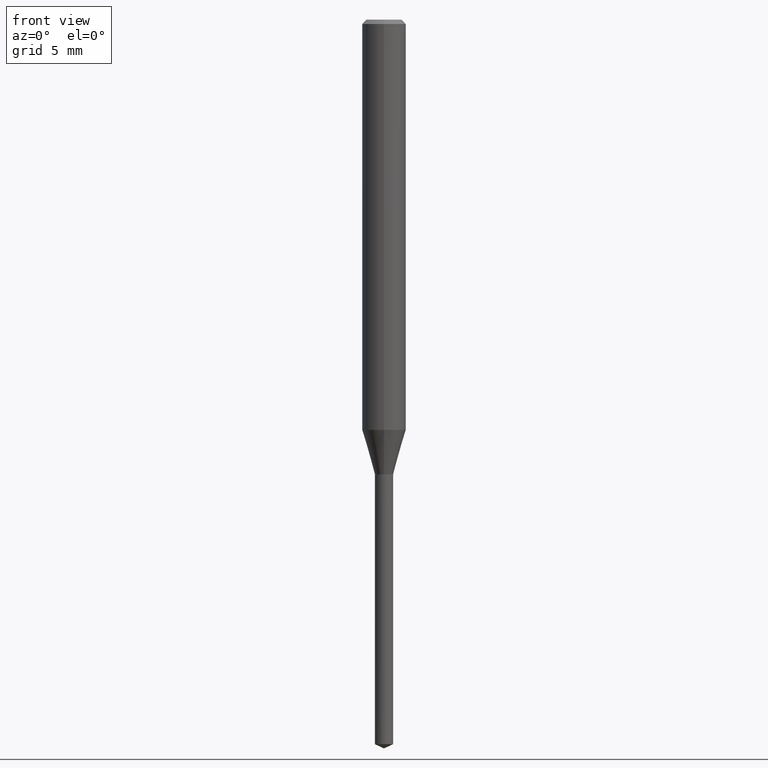
[diagram: clean part render]
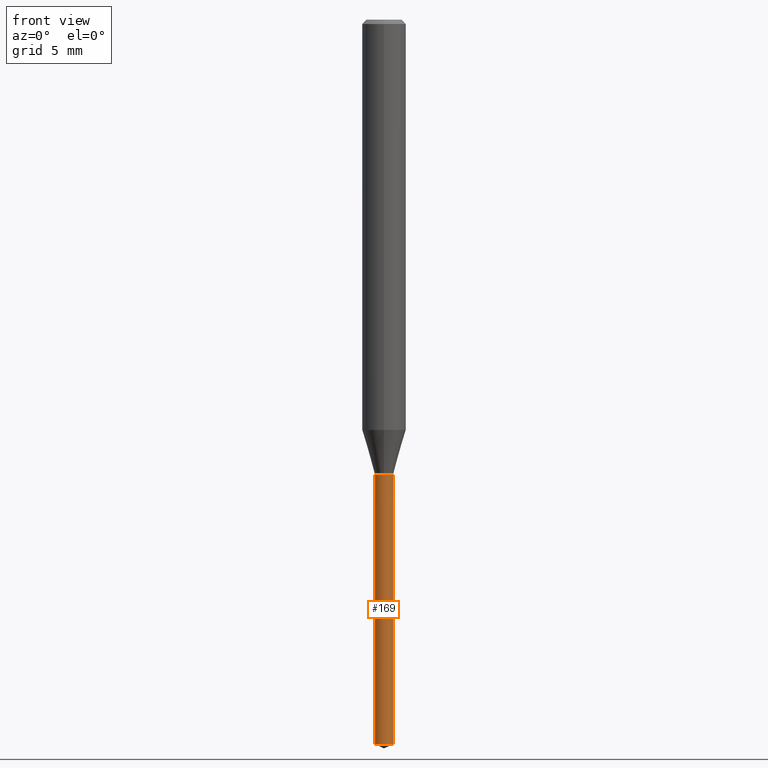
[diagram: same view with one face highlighted and labeled with its STEP entity id]
A machine part, front view. The second image highlights one B-rep face of the part: STEP entity #169.
In plain terms, the highlighted conical surface has half-angle 0.003 deg.
Its self-contained STEP definition (entity closure, byte-faithful):
#93=EDGE_CURVE('',#191,#111,#229,.T.);
#103=VERTEX_POINT('',#240);
#107=EDGE_CURVE('',#149,#103,#245,.T.);
#111=VERTEX_POINT('',#250);
#129=EDGE_CURVE('',#103,#111,#269,.T.);
#149=VERTEX_POINT('',#291);
#155=EDGE_CURVE('',#191,#149,#298,.T.);
#169=ADVANCED_FACE('',(#315),#316,.T.);
#191=VERTEX_POINT('',#340);
#229=CIRCLE('',#372,0.625);
#240=CARTESIAN_POINT('',(-0.626,0.0,-31.2));
#245=CIRCLE('',#393,0.626);
#250=CARTESIAN_POINT('',(-0.625,0.0,-49.70855771));
#269=LINE('',#422,#423);
#291=CARTESIAN_POINT('',(0.626,7.66603577492808E-017,-31.2));
#298=LINE('',#459,#460);
#315=FACE_OUTER_BOUND('',#480,.T.);
#316=CONICAL_SURFACE('',#481,0.6255,5.40290612966922E-005);
#340=CARTESIAN_POINT('',(0.625,7.65378971138986E-017,-49.70855771));
#372=AXIS2_PLACEMENT_3D('',#543,#544,#545);
#393=AXIS2_PLACEMENT_3D('',#564,#565,#566);
#422=CARTESIAN_POINT('',(-0.6255,-7.65991274315897E-017,-40.454278855));
#423=VECTOR('',#592,1.0);
#459=CARTESIAN_POINT('',(0.6255,7.65991274315897E-017,-40.454278855));
#460=VECTOR('',#627,1.0);
#480=EDGE_LOOP('',(#660,#661,#662,#663));
#481=AXIS2_PLACEMENT_3D('',#664,#665,#666);
#543=CARTESIAN_POINT('',(0.0,0.0,-49.70855771));
#544=DIRECTION('',(0.0,0.0,-1.0));
#545=DIRECTION('',(-1.0,0.0,0.0));
#564=CARTESIAN_POINT('',(0.0,0.0,-31.2));
#565=DIRECTION('',(0.0,0.0,-1.0));
#566=DIRECTION('',(-1.0,0.0,0.0));
#592=DIRECTION('',(5.40290612704058E-005,6.61643317227974E-021,-0.99999999854043));
#627=DIRECTION('',(5.40290612704058E-005,6.61643317227974E-021,0.99999999854043));
#660=ORIENTED_EDGE('',*,*,#129,.T.);
#661=ORIENTED_EDGE('',*,*,#93,.F.);
#662=ORIENTED_EDGE('',*,*,#155,.T.);
#663=ORIENTED_EDGE('',*,*,#107,.T.);
#664=CARTESIAN_POINT('',(0.0,0.0,-40.454278855));
#665=DIRECTION('',(-0.0,-0.0,1.0));
#666=DIRECTION('',(-1.0,0.0,0.0));